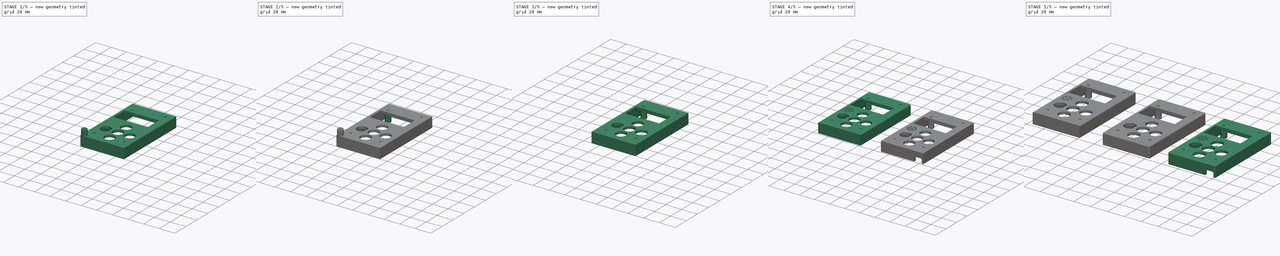
[diagram: build sequence overview — one tinted view per stage of 5, left to right]
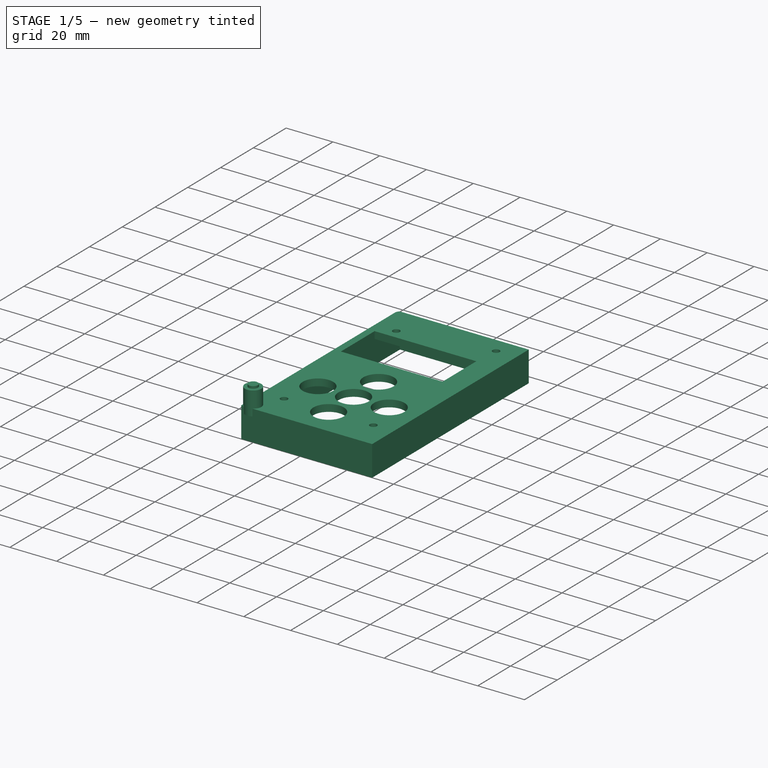
[diagram: stage 1 of 5 — iso view after this stage's code; geometry added in this stage tinted green]
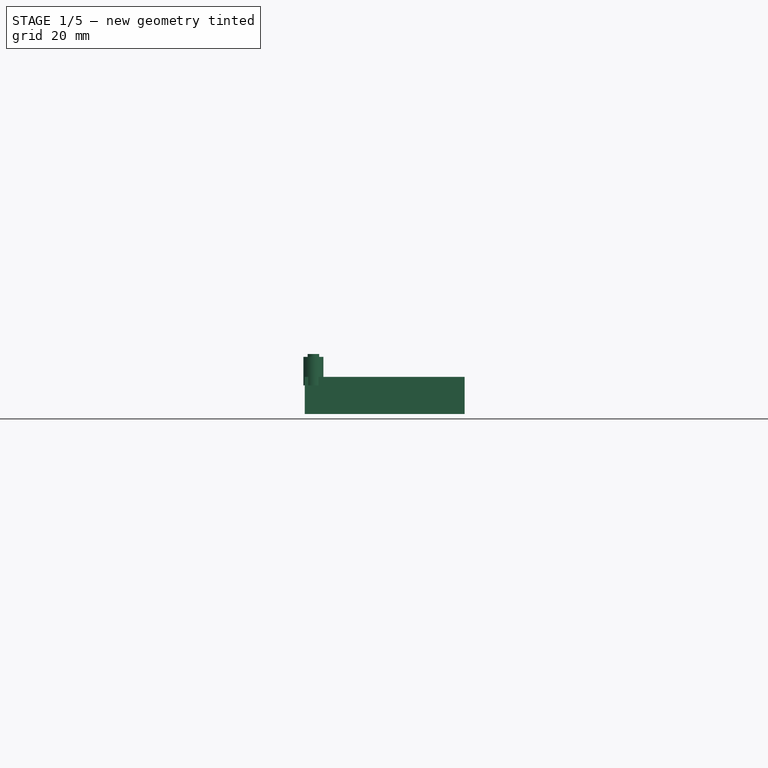
[diagram: stage 1 of 5 — front view after this stage's code; geometry added in this stage tinted green]
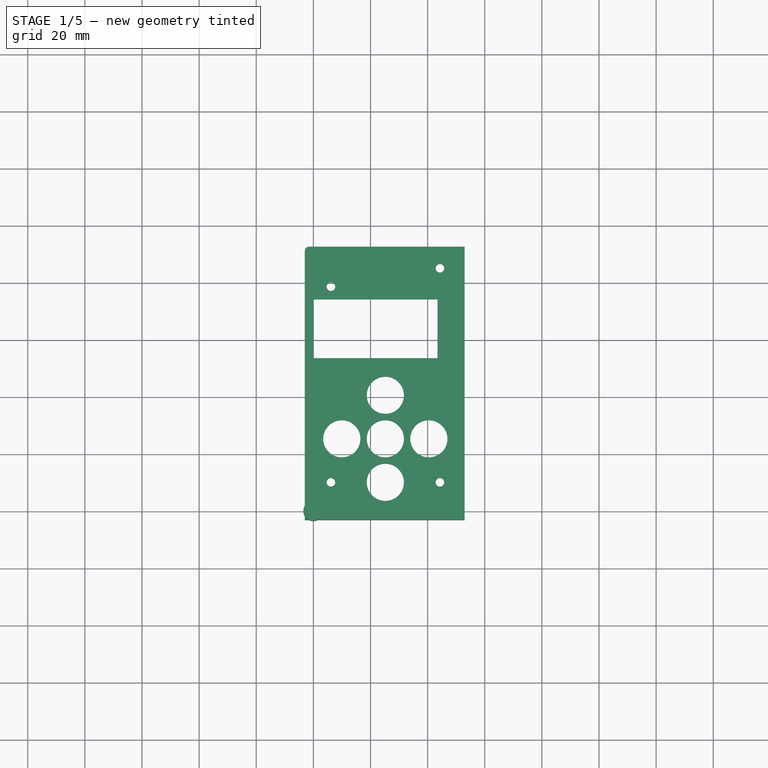
[diagram: stage 1 of 5 — top view after this stage's code; geometry added in this stage tinted green]
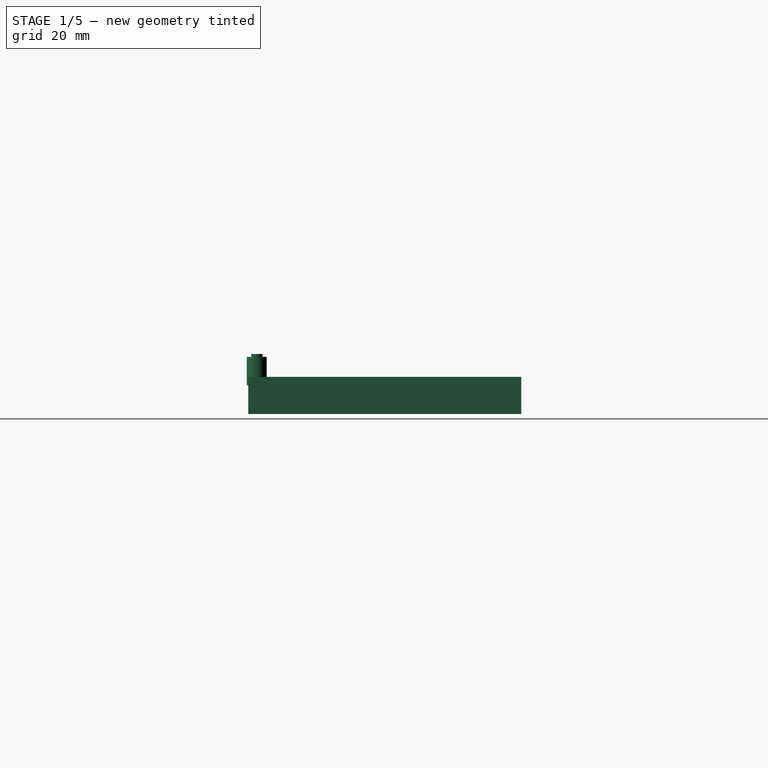
[diagram: stage 1 of 5 — right view after this stage's code; geometry added in this stage tinted green]
FCSTD DOCUMENT  (FreeCAD 0.18R)
Label: Tapacpu2.10
License: All rights reserved
LicenseURL: http://en.wikipedia.org/wiki/All_rights_reserved
objects: Part::Fillet×9, Part::Cylinder×8, Sketcher::SketchObject×5, Part::Cut×4, PartDesign::Pocket×3, PartDesign::Plane×3, PartDesign::Body×3, PartDesign::Pad×2, PartDesign::FeatureBase×2, Part::MultiFuse×1, App::DocumentObjectGroup×1
note: 45 computed .brp shape members not serialized (recipe doc carries the construction recipe); baked Part::Feature solids carry a one-line shape summary decoded from their .brp

FEATURE [Sketcher::SketchObject] Sketch  label="Dibujo botonera"
  MapMode = 2
  Support = -> [Sketch]
  sketch-geometry (13):
    g0: LineSegment StartX=0 StartY=89.58 StartZ=0 EndX=49.96 EndY=89.58 EndZ=0
    g1: LineSegment StartX=49.96 StartY=89.58 StartZ=0 EndX=49.96 EndY=0 EndZ=0
    g2: LineSegment StartX=49.96 StartY=0 StartZ=0 EndX=0 EndY=0 EndZ=0
    g3: LineSegment StartX=0 StartY=0 StartZ=0 EndX=0 EndY=89.58 EndZ=0
    g4: Circle CenterX=6.15 CenterY=10.08 CenterZ=0 NormalX=0 NormalY=0 NormalZ=1 AngleXU=0 Radius=1.5
    g5: Circle CenterX=44.31 CenterY=10.08 CenterZ=0 NormalX=0 NormalY=0 NormalZ=1 AngleXU=0 Radius=1.5
    g6: Circle CenterX=6.15 CenterY=78.58 CenterZ=0 NormalX=0 NormalY=0 NormalZ=1 AngleXU=0 Radius=1.5
    g7: Circle CenterX=44.31 CenterY=85.03 CenterZ=0 NormalX=0 NormalY=0 NormalZ=1 AngleXU=0 Radius=1.5
    g8: Circle CenterX=25.2 CenterY=10.08 CenterZ=0 NormalX=0 NormalY=0 NormalZ=1 AngleXU=0 Radius=6.5
    g9: Circle CenterX=40.44 CenterY=25.32 CenterZ=0 NormalX=0 NormalY=0 NormalZ=1 AngleXU=0 Radius=6.5
    g10: Circle CenterX=25.2 CenterY=40.56 CenterZ=0 NormalX=0 NormalY=0 NormalZ=1 AngleXU=0 Radius=6.5
    g11: Circle CenterX=9.96 CenterY=25.32 CenterZ=0 NormalX=0 NormalY=0 NormalZ=1 AngleXU=0 Radius=6.5
    g12: Circle CenterX=25.2 CenterY=25.32 CenterZ=0 NormalX=0 NormalY=0 NormalZ=1 AngleXU=0 Radius=6.5
  constraints (38):
    c: Coincident(g0,g1)
    c: Coincident(g1,g2)
    c: Coincident(g2,g3)
    c: Coincident(g3,g0)
    c: Horizontal(g0)
    c: Horizontal(g2)
    c: Vertical(g1)
    c: Vertical(g3)
    c: Coincident(g2,g-1)
    c: DistanceY(g3,g3) = 89.58
    c: DistanceX(g2,g2) = 49.96
    c: DistanceX(g2,g4) = 6.15
    c: DistanceY(g2,g4) = 10.08
    c: DistanceX(g2,g5) = 44.31
    c: DistanceY(g2,g6) = 78.58
    c: DistanceY(g2,g7) = 85.03
    c: Radius(g4) = 1.5
    c: Equal(g4,g5)
    c: Equal(g4,g7)
    c: Equal(g4,g6)
    c: DistanceX(g2,g6) = 6.15
    c: DistanceX(g2,g8) = 25.2
    c: DistanceY(g2,g8) = 10.08
    c: Horizontal(g4,g5)
    c: Vertical(g5,g7)
    c: DistanceY(g8,g12) = 15.24
    c: Vertical(g12,g8)
    c: Vertical(g12,g10)
    c: DistanceY(g12,g10) = 15.24
    c: Horizontal(g12,g11)
    c: Horizontal(g12,g9)
    c: DistanceX(g12,g9) = 15.24
    c: DistanceX(g11,g12) = 15.24
    c: Radius(g8) = 6.5
    c: Equal(g8,g12)
    c: Equal(g8,g9)
    c: Equal(g8,g10)
    c: Equal(g8,g11)
FEATURE [PartDesign::Pad] Pad
  Length = 3
  Length2 = 100
  Profile = -> Sketch
  Type = 0
FEATURE [Sketcher::SketchObject] Sketch001  label="Corte hueco arduino"
  MapMode = 5
  Placement = pos=(0,0,3) rot=(0,0,1;0rad)
  sketch-geometry (4):
    g0: LineSegment StartX=-2.61911 StartY=74.14 StartZ=0 EndX=43.4809 EndY=74.14 EndZ=0
    g1: LineSegment StartX=43.4809 StartY=74.14 StartZ=0 EndX=43.4809 EndY=53.54 EndZ=0
    g2: LineSegment StartX=43.4809 StartY=53.54 StartZ=0 EndX=-2.61911 EndY=53.54 EndZ=0
    g3: LineSegment StartX=-2.61911 StartY=53.54 StartZ=0 EndX=-2.61911 EndY=74.14 EndZ=0
  constraints (11):
    c: Coincident(g0,g1)
    c: Coincident(g1,g2)
    c: Coincident(g2,g3)
    c: Coincident(g3,g0)
    c: Horizontal(g0)
    c: Horizontal(g2)
    c: Vertical(g1)
    c: Vertical(g3)
    c: DistanceY(g-1,g2) = 53.54
    c: DistanceX(g2,g2) = 46.1
    c: DistanceY(g1,g1) = 20.6
FEATURE [PartDesign::Pocket] Pocket
  BaseFeature = -> Pad
  Length = 0
  Length2 = 100
  Midplane = true
  Profile = -> Sketch001
  Type = 3
  UpToFace = -> Pad [Face14]
FEATURE [Part::Cylinder] Cylinder006  label="Cilindro006"
  Angle = 360
  AttacherType = Attacher::AttachEngine3D
  Height = 12
  Placement = pos=(0,0,-1) rot=(0,0,1;0rad)
  Radius = 2
FEATURE [Part::Cylinder] Cylinder007  label="Cilindro007"
  Angle = 360
  AttacherType = Attacher::AttachEngine3D
  Height = 10
  Radius = 3.5
FEATURE [PartDesign::Plane] DatumPlane
  Length = 24
  ResizeMode = 0
  Width = 24
FEATURE [Sketcher::SketchObject] Sketch004
  MapMode = 5
  Support = -> [DatumPlane]
  sketch-geometry (8):
    g0: LineSegment StartX=0 StartY=0 StartZ=0 EndX=49.96 EndY=0 EndZ=0
    g1: LineSegment StartX=0 StartY=0 StartZ=0 EndX=0 EndY=89.58 EndZ=0
    g2: LineSegment StartX=49.96 StartY=0 StartZ=0 EndX=49.96 EndY=89.58 EndZ=0
    g3: LineSegment StartX=0 StartY=89.58 StartZ=0 EndX=49.96 EndY=89.58 EndZ=0
    g4: LineSegment StartX=-3 StartY=92.58 StartZ=0 EndX=52.96 EndY=92.58 EndZ=0
    g5: LineSegment StartX=52.96 StartY=92.58 StartZ=0 EndX=52.96 EndY=-3 EndZ=0
    g6: LineSegment StartX=52.96 StartY=-3 StartZ=0 EndX=-3 EndY=-3 EndZ=0
    g7: LineSegment StartX=-3 StartY=-3 StartZ=0 EndX=-3 EndY=92.58 EndZ=0
  constraints (23):
    c: Coincident(g0,g-1)
    c: Horizontal(g0)
    c: Vertical(g1)
    c: DistanceY(g1,g1) = 89.58
    c: Vertical(g2)
    c: Equal(g1,g2)
    c: Coincident(g2,g0)
    c: DistanceX(g0,g0) = 49.96
    c: Coincident(g3,g1)
    c: Coincident(g3,g2)
    c: Coincident(g4,g5)
    c: Coincident(g5,g6)
    c: Coincident(g6,g7)
    c: Coincident(g7,g4)
    c: Horizontal(g4)
    c: Horizontal(g6)
    c: Vertical(g5)
    c: Vertical(g7)
    c: DistanceX(g6,g-1) = 3
    c: DistanceY(g5,g0) = 3
    c: DistanceX(g0,g5) = 3
    c: DistanceY(g2,g4) = 3
    c: Coincident(g0,g1)
FEATURE [PartDesign::Pad] Pad002
  BaseFeature = -> Pocket
  Length = 3
  Length2 = 10
  Profile = -> Sketch004
  Type = 4
FEATURE [PartDesign::Body] Body
  Group = -> [Sketch,Pad,Sketch001,Pocket,DatumPlane,Sketch004,Pad002]
  Origin = -> Origin
  Tip = -> Pad002
FEATURE [Part::Fillet] Fillet
  Base = -> Pad002
  Edges = 4 edges r=1.5: [Edge60,Edge61,Edge63,Edge65]
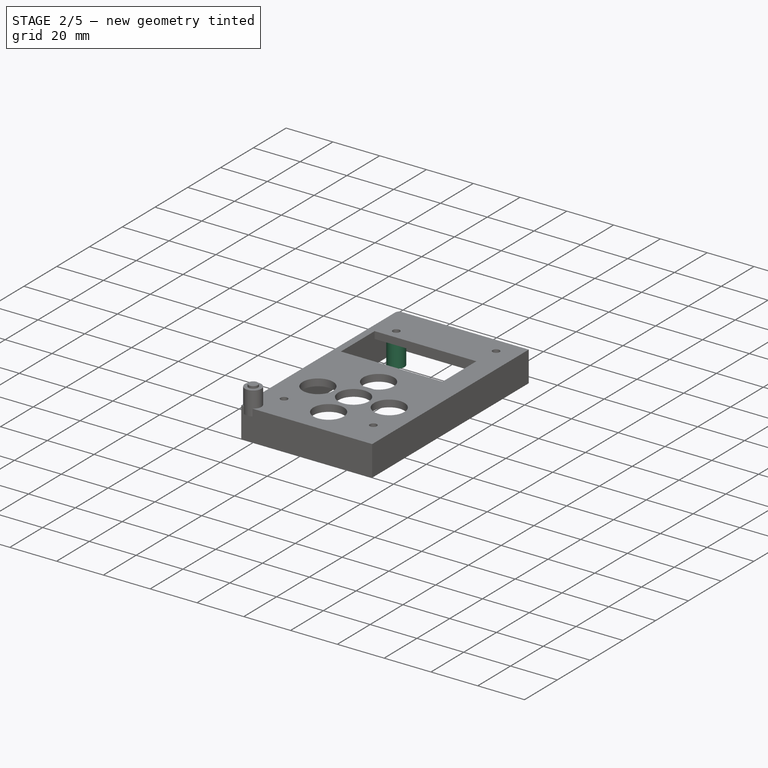
[diagram: stage 2 of 5 — iso view after this stage's code; geometry added in this stage tinted green]
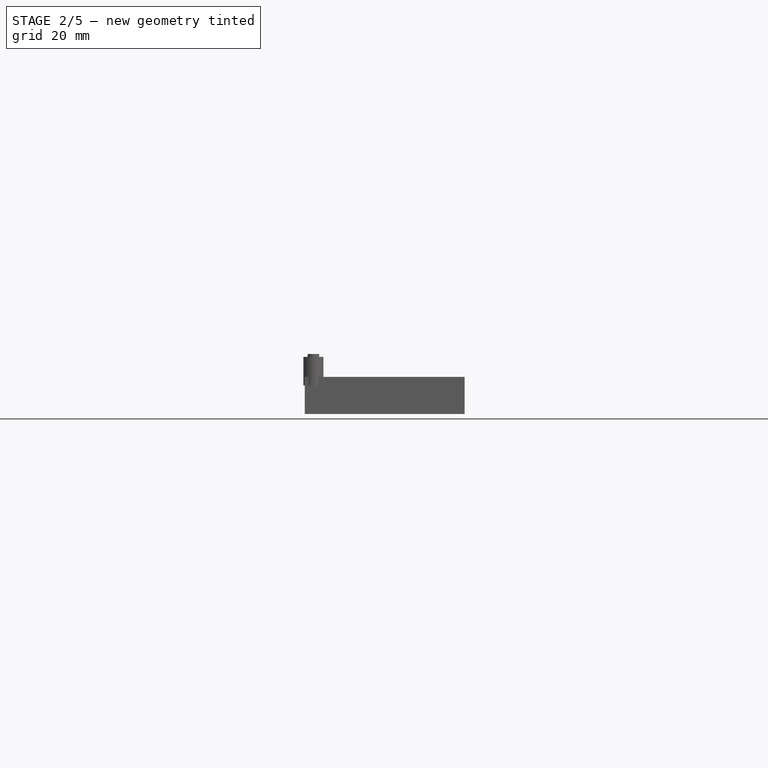
[diagram: stage 2 of 5 — front view after this stage's code; geometry added in this stage tinted green]
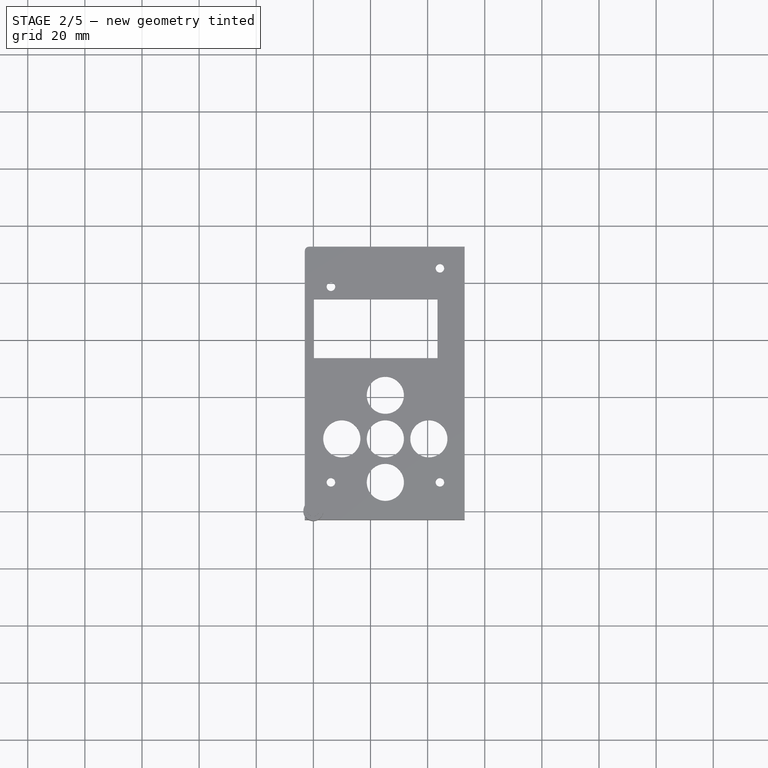
[diagram: stage 2 of 5 — top view after this stage's code; geometry added in this stage tinted green]
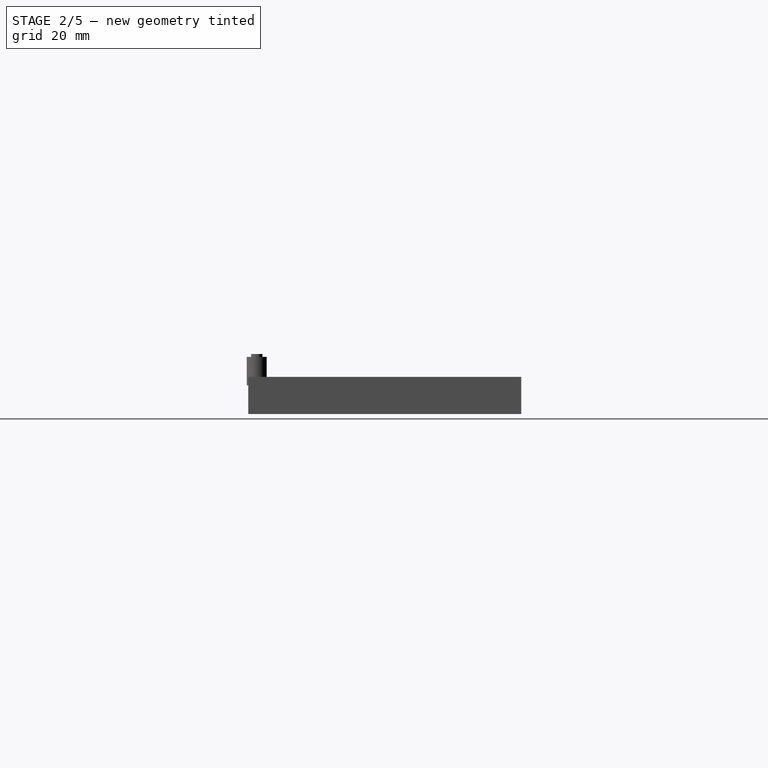
[diagram: stage 2 of 5 — right view after this stage's code; geometry added in this stage tinted green]
FEATURE [Part::Cylinder] Cylinder002  label="Cilindro002"
  Angle = 360
  AttacherType = Attacher::AttachEngine3D
  Height = 10
  Radius = 3.5
FEATURE [Part::Cylinder] Cylinder003  label="Cilindro003"
  Angle = 360
  AttacherType = Attacher::AttachEngine3D
  Height = 12
  Placement = pos=(0,0,-1) rot=(0,0,1;0rad)
  Radius = 2
FEATURE [Part::Cylinder] Cylinder004  label="Cilindro004"
  Angle = 360
  AttacherType = Attacher::AttachEngine3D
  Height = 12
  Placement = pos=(0,0,-1) rot=(0,0,1;0rad)
  Radius = 2
FEATURE [Part::Cylinder] Cylinder005  label="Cilindro005"
  Angle = 360
  AttacherType = Attacher::AttachEngine3D
  Height = 10
  Radius = 3.5
FEATURE [Part::Cut] Cut002  label="Apoyo_3"
  Base = -> Cylinder005
  Placement = pos=(6.15,78.58,-10) rot=(0,0,1;0rad)
  Tool = -> Cylinder004
FEATURE [Part::Cut] Cut003  label="Apoyo_4"
  Base = -> Cylinder007
  Placement = pos=(44.3,85.03,-10) rot=(0,0,1;0rad)
  Tool = -> Cylinder006
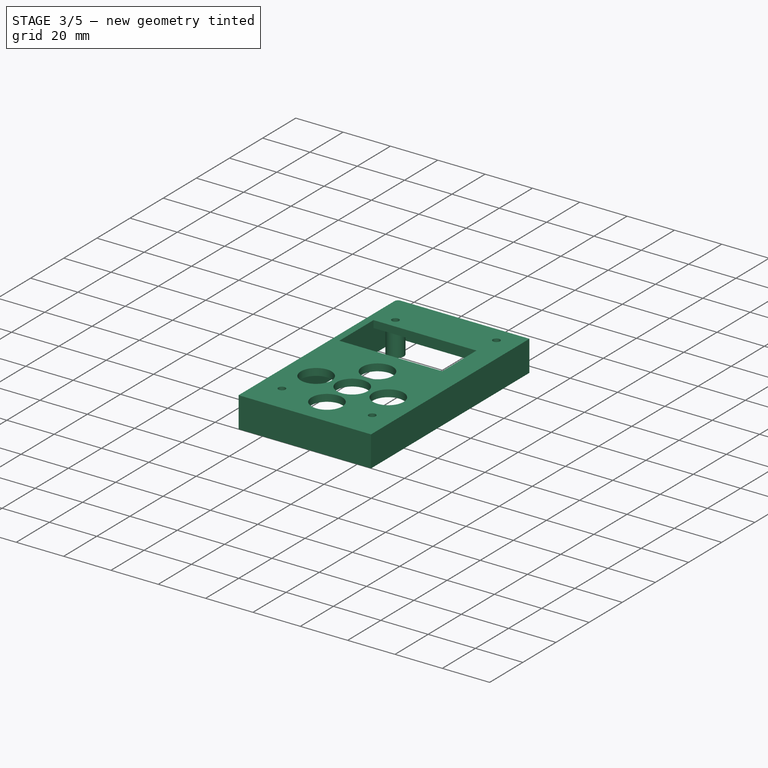
[diagram: stage 3 of 5 — iso view after this stage's code; geometry added in this stage tinted green]
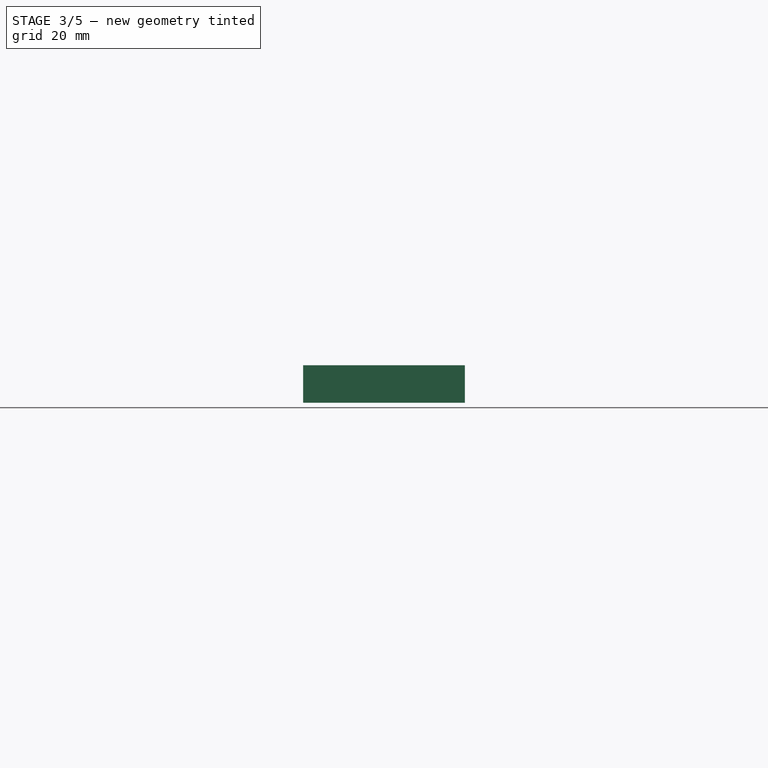
[diagram: stage 3 of 5 — front view after this stage's code; geometry added in this stage tinted green]
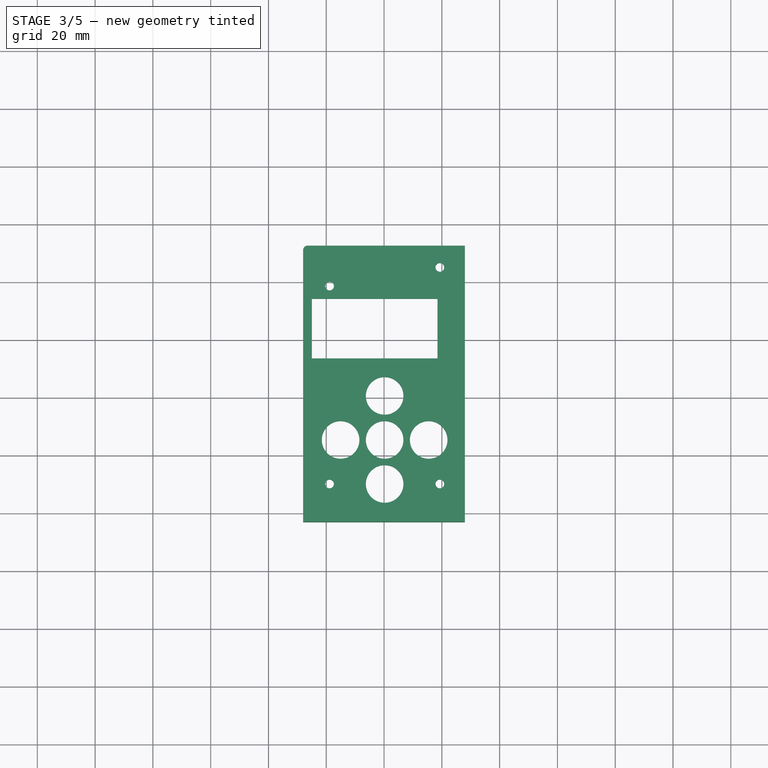
[diagram: stage 3 of 5 — top view after this stage's code; geometry added in this stage tinted green]
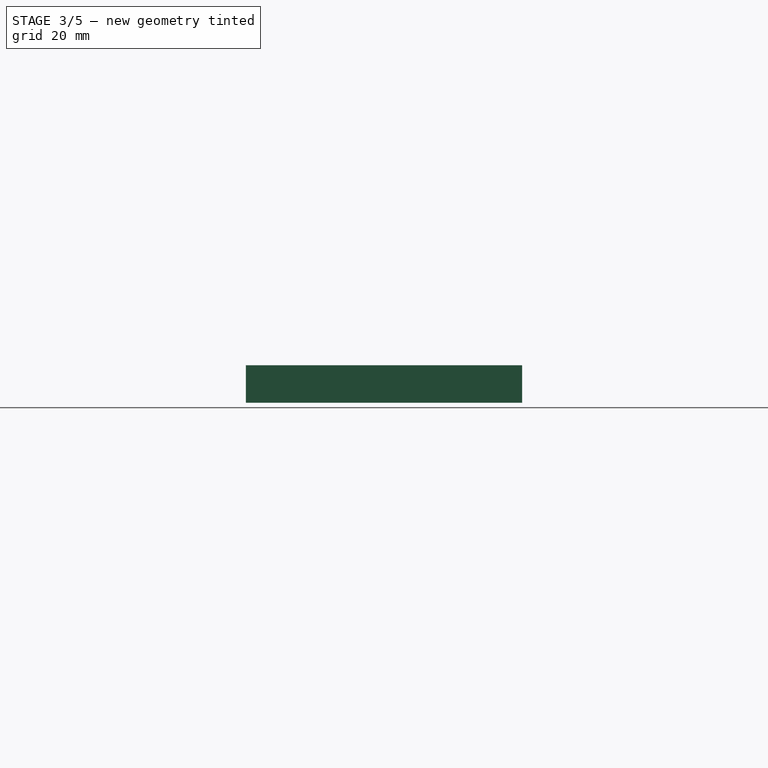
[diagram: stage 3 of 5 — right view after this stage's code; geometry added in this stage tinted green]
FEATURE [Part::Cylinder] Cylinder  label="Cilindro"
  Angle = 360
  AttacherType = Attacher::AttachEngine3D
  Height = 12
  Placement = pos=(0,0,-1) rot=(0,0,1;0rad)
  Radius = 2
FEATURE [Part::Cylinder] Cylinder001  label="Cilindro001"
  Angle = 360
  AttacherType = Attacher::AttachEngine3D
  Height = 10
  Radius = 3.5
FEATURE [Part::Cut] Cut  label="Apoyo_1"
  Base = -> Cylinder001
  Placement = pos=(6.15,10.08,-10) rot=(0,0,1;0rad)
  Tool = -> Cylinder
FEATURE [Part::Cut] Cut001  label="Apoyo_2"
  Base = -> Cylinder002
  Placement = pos=(44.31,10.08,-10) rot=(0,0,1;0rad)
  Tool = -> Cylinder003
FEATURE [Part::MultiFuse] Fusion  label="TapaFinal"
  Placement = pos=(75,0,0) rot=(0,0,1;0rad)
  Shapes = -> [Cut,Cut001,Cut002,Cut003,Fillet]
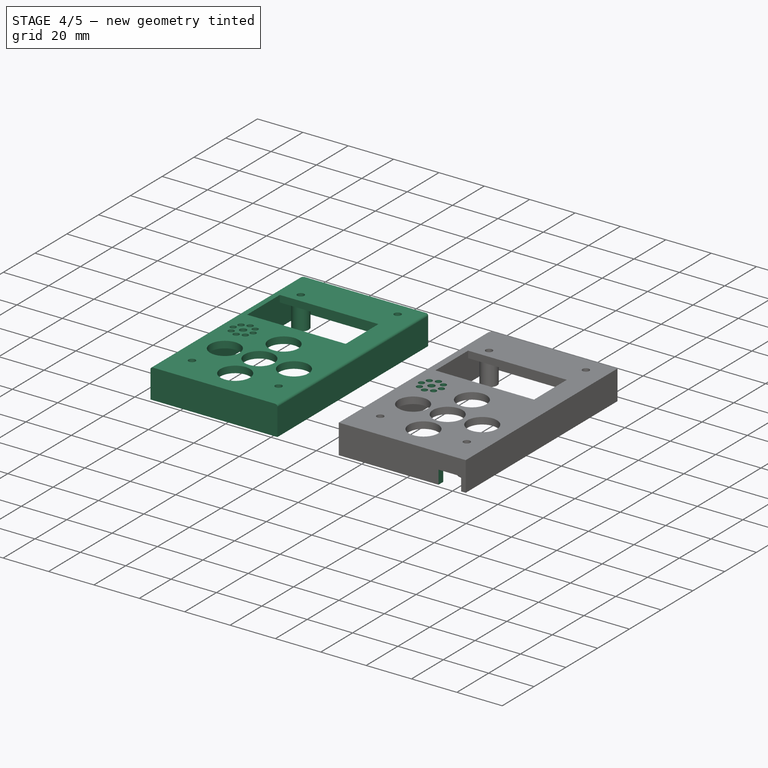
[diagram: stage 4 of 5 — iso view after this stage's code; geometry added in this stage tinted green]
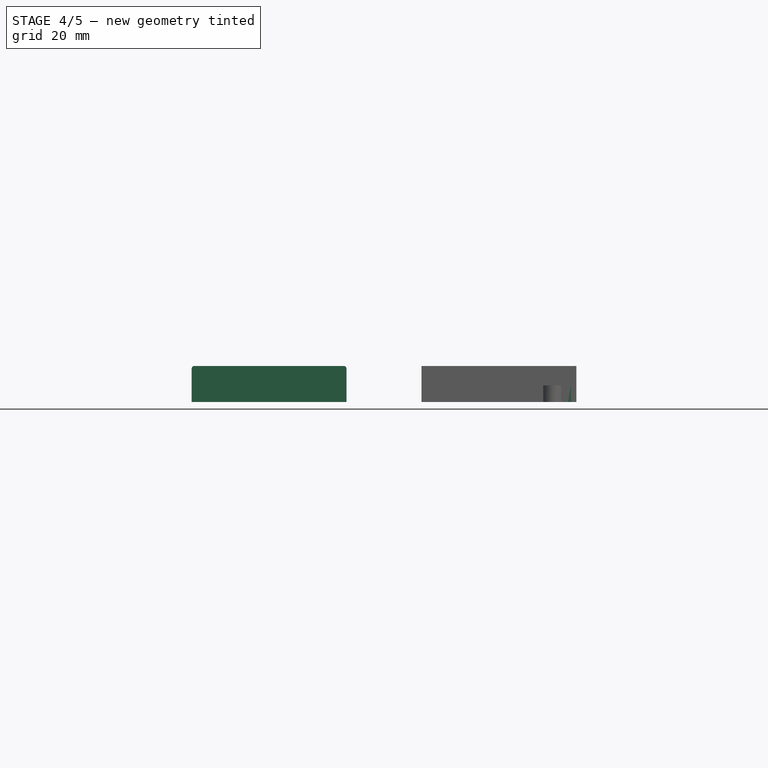
[diagram: stage 4 of 5 — front view after this stage's code; geometry added in this stage tinted green]
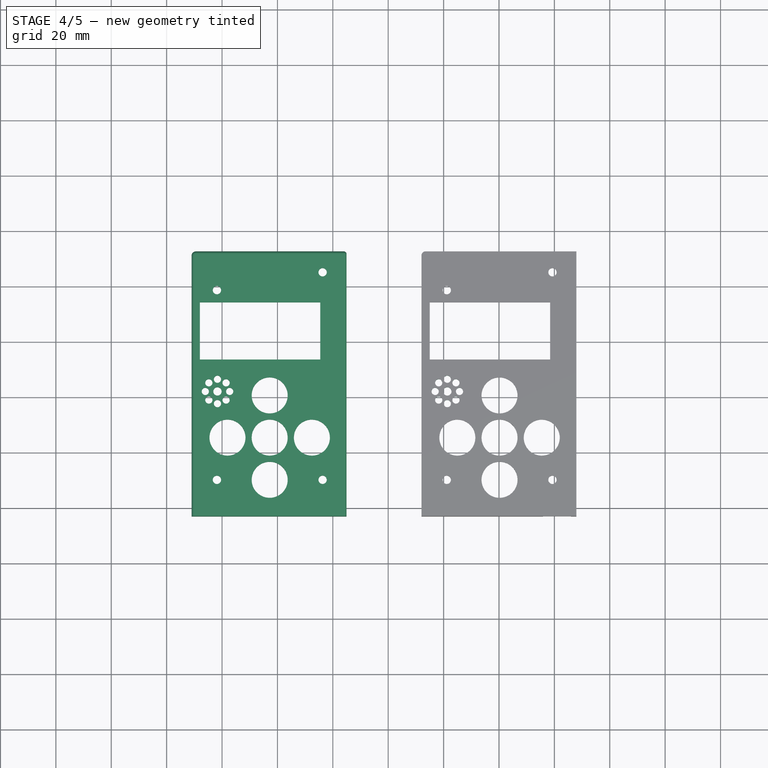
[diagram: stage 4 of 5 — top view after this stage's code; geometry added in this stage tinted green]
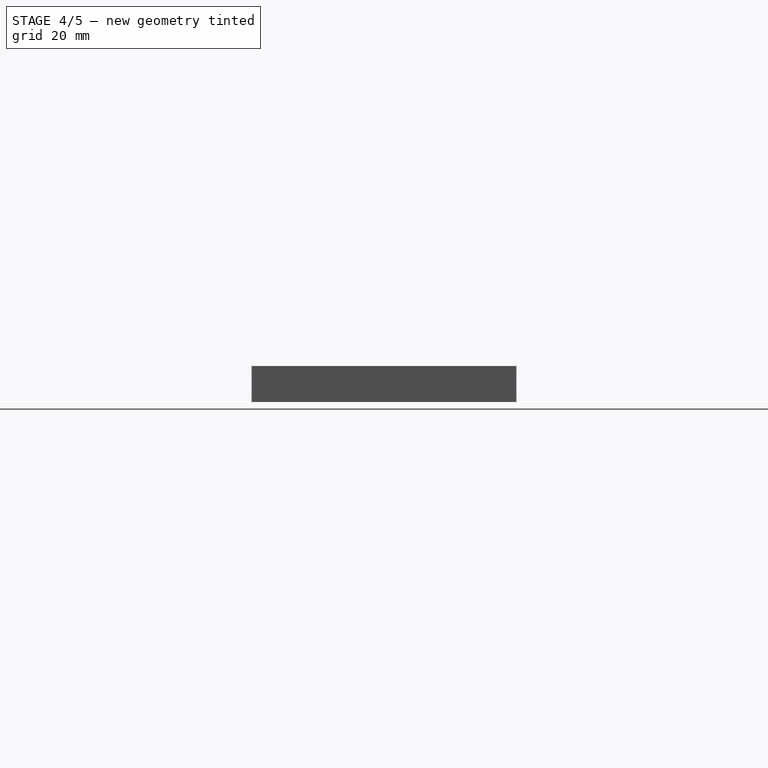
[diagram: stage 4 of 5 — right view after this stage's code; geometry added in this stage tinted green]
FEATURE [PartDesign::FeatureBase] Clone
  BaseFeature = -> Fusion
FEATURE [PartDesign::Plane] DatumPlane001
  Length = 24
  Placement = pos=(0,0,3) rot=(0,0,1;0rad)
  ResizeMode = 0
  Width = 24
FEATURE [Sketcher::SketchObject] Sketch005  label="Agujeros buzzer"
  MapMode = 5
  Placement = pos=(0,0,3) rot=(0,0,1;0rad)
  Support = -> [DatumPlane001]
  sketch-geometry (19):
    g0: GeomPoint X=6.35 Y=42 Z=0
    g1: Circle CenterX=6.35 CenterY=42 CenterZ=0 NormalX=0 NormalY=0 NormalZ=1 AngleXU=0 Radius=1.5
    g2: Circle [constr] CenterX=6.35 CenterY=42 CenterZ=0 NormalX=0 NormalY=0 NormalZ=1 AngleXU=0 Radius=4.4
    g3: LineSegment [constr] StartX=6.35 StartY=42 StartZ=0 EndX=6.35 EndY=37.6 EndZ=0
    g4: LineSegment [constr] StartX=6.35 StartY=42 StartZ=0 EndX=6.35 EndY=46.4 EndZ=0
    g5: LineSegment [constr] StartX=6.35 StartY=42 StartZ=0 EndX=1.95 EndY=42 EndZ=0
    g6: LineSegment [constr] StartX=6.35 StartY=42 StartZ=0 EndX=10.75 EndY=42 EndZ=0
    g7: LineSegment [constr] StartX=6.35 StartY=42 StartZ=0 EndX=9.46127 EndY=45.1113 EndZ=0
    g8: LineSegment [constr] StartX=6.35 StartY=42 StartZ=0 EndX=3.23873 EndY=45.1113 EndZ=0
    g9: LineSegment [constr] StartX=6.35 StartY=42 StartZ=0 EndX=3.23873 EndY=38.8887 EndZ=0
    g10: LineSegment [constr] StartX=6.35 StartY=42 StartZ=0 EndX=9.46127 EndY=38.8887 EndZ=0
    g11: Circle CenterX=1.95 CenterY=42 CenterZ=0 NormalX=0 NormalY=0 NormalZ=1 AngleXU=0 Radius=1.3
    g12: Circle CenterX=3.23873 CenterY=45.1113 CenterZ=0 NormalX=0 NormalY=0 NormalZ=1 AngleXU=0 Radius=1.3
    g13: Circle CenterX=6.35 CenterY=46.4 CenterZ=0 NormalX=0 NormalY=0 NormalZ=1 AngleXU=0 Radius=1.3
    g14: Circle CenterX=9.46127 CenterY=45.1113 CenterZ=0 NormalX=0 NormalY=0 NormalZ=1 AngleXU=0 Radius=1.3
    g15: Circle CenterX=10.75 CenterY=42 CenterZ=0 NormalX=0 NormalY=0 NormalZ=1 AngleXU=0 Radius=1.3
    g16: Circle CenterX=9.46127 CenterY=38.8887 CenterZ=0 NormalX=0 NormalY=0 NormalZ=1 AngleXU=0 Radius=1.3
    g17: Circle CenterX=6.35 CenterY=37.6 CenterZ=0 NormalX=0 NormalY=0 NormalZ=1 AngleXU=0 Radius=1.3
    g18: Circle CenterX=3.23873 CenterY=38.8887 CenterZ=0 NormalX=0 NormalY=0 NormalZ=1 AngleXU=0 Radius=1.3
  constraints (43):
    c: DistanceY(g-1,g0) = 42
    c: DistanceX(g-1,g0) = 6.35
    c: Diameter(g1) = 3
    c: Coincident(g0,g1)
    c: Coincident(g2,g0)
    c: Radius(g2) = 4.4
    c: Coincident(g3,g0)
    c: PointOnObject(g3,g2)
    c: Vertical(g3)
    c: Coincident(g4,g0)
    c: PointOnObject(g4,g2)
    c: Vertical(g4)
    c: Coincident(g5,g0)
    c: PointOnObject(g5,g2)
    c: Horizontal(g5)
    c: Coincident(g6,g0)
    c: PointOnObject(g6,g2)
    c: Horizontal(g6)
    c: Coincident(g7,g0)
    c: PointOnObject(g7,g2)
    c: Coincident(g8,g0)
    c: PointOnObject(g8,g2)
    c: PointOnObject(g9,g2)
    c: Coincident(g10,g0)
    c: PointOnObject(g10,g2)
    c: Coincident(g0,g9)
    c: Angle(g6,g7) = 0.785398
    c: Angle(g8,g5) = 0.785398
    c: Angle(g5,g9) = 0.785398
    c: Angle(g10,g6) = 0.785398
    c: Coincident(g11,g5)
    c: Coincident(g12,g8)
    c: Coincident(g13,g4)
    c: Coincident(g14,g7)
    c: Coincident(g15,g6)
    c: Coincident(g16,g10)
    c: Coincident(g17,g3)
    c: Coincident(g18,g9)
    c: Radius(g18) = 1.3
    c: Equal(g18, g11-g14) x4
    c: Equal(g18,g16)
    c: Equal(g18,g15)
    c: Equal(g18,g17)
FEATURE [PartDesign::Pocket] Pocket001  label="Buzzer"
  BaseFeature = -> Clone
  Length = 5
  Length2 = 100
  Profile = -> Sketch005
  Type = 1
FEATURE [PartDesign::Body] Body001  label="TapaBuzzer"
  BaseFeature = -> Fusion
  Group = -> [Clone,DatumPlane001,Sketch005,Pocket001]
  Origin = -> Origin001
  Placement = pos=(75,0,0) rot=(0,0,1;0rad)
  Tip = -> Pocket001
FEATURE [PartDesign::FeatureBase] Clone001
  BaseFeature = -> Body001
  Placement = pos=(75,0,0) rot=(0,0,1;0rad)
FEATURE [PartDesign::Plane] DatumPlane002
  Length = 148.466
  Placement = pos=(73,-3,-3) rot=(1,0,0;1.5708rad)
  ResizeMode = 0
  Width = 30.5056
FEATURE [Sketcher::SketchObject] Sketch006
  ExternalGeometry = -> [Clone001]
  MapMode = 5
  Placement = pos=(73,-3,-3) rot=(1,0,0;1.5708rad)
  Support = -> [DatumPlane002]
  sketch-geometry (4):
    g0: LineSegment StartX=42.96 StartY=-1 StartZ=0 EndX=52.96 EndY=-1 EndZ=0
    g1: LineSegment StartX=52.96 StartY=-1 StartZ=0 EndX=52.96 EndY=-7 EndZ=0
    g2: LineSegment StartX=52.96 StartY=-7 StartZ=0 EndX=42.96 EndY=-7 EndZ=0
    g3: LineSegment StartX=42.96 StartY=-7 StartZ=0 EndX=42.96 EndY=-1 EndZ=0
  constraints (12):
    c: Coincident(g0,g1)
    c: Coincident(g1,g2)
    c: Coincident(g2,g3)
    c: Coincident(g3,g0)
    c: Horizontal(g0)
    c: Horizontal(g2)
    c: Vertical(g1)
    c: Vertical(g3)
    c: DistanceX(g1,g-4) = 2
    c: DistanceY(g1,g1) = 6
    c: Horizontal(g1,g-4)
    c: DistanceX(g0,g0) = 10
FEATURE [PartDesign::Pocket] Pocket002
  BaseFeature = -> Clone001
  Length = 5
  Length2 = 100
  Placement = pos=(75,0,0) rot=(0,0,1;0rad)
  Profile = -> Sketch006
  Type = 0
FEATURE [Part::Fillet] Fillet004
  Base = -> Pocket001
  Edges = 1 edges r=1: [Edge18]
FEATURE [Part::Fillet] Fillet008  label="TapaBuzzer Final"
  Base = -> Fillet004
  Edges = 1 edges r=1: [Edge4]
  Placement = pos=(-8,0,0) rot=(0,0,1;0rad)
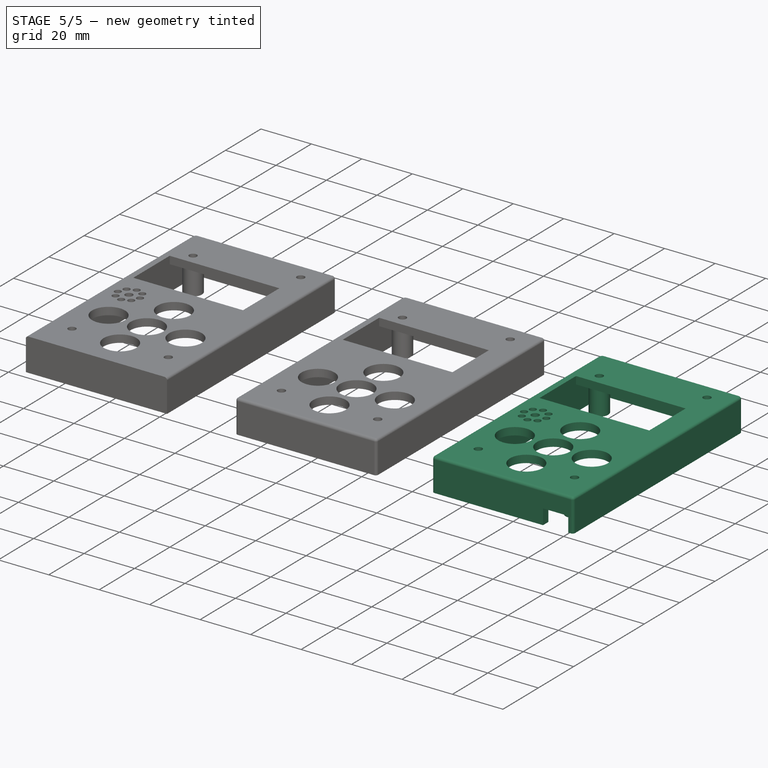
[diagram: stage 5 of 5 — iso view after this stage's code; geometry added in this stage tinted green]
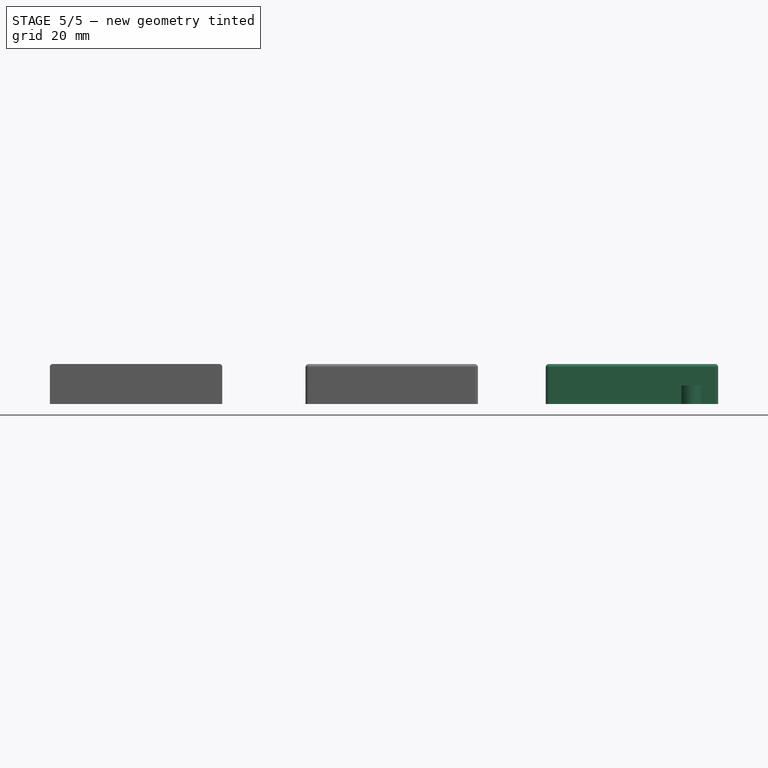
[diagram: stage 5 of 5 — front view after this stage's code; geometry added in this stage tinted green]
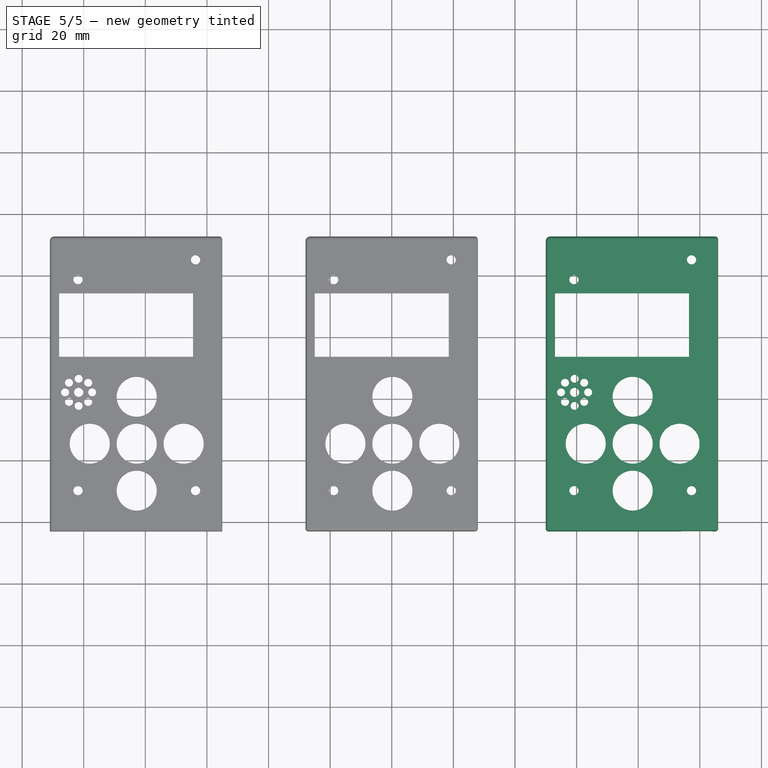
[diagram: stage 5 of 5 — top view after this stage's code; geometry added in this stage tinted green]
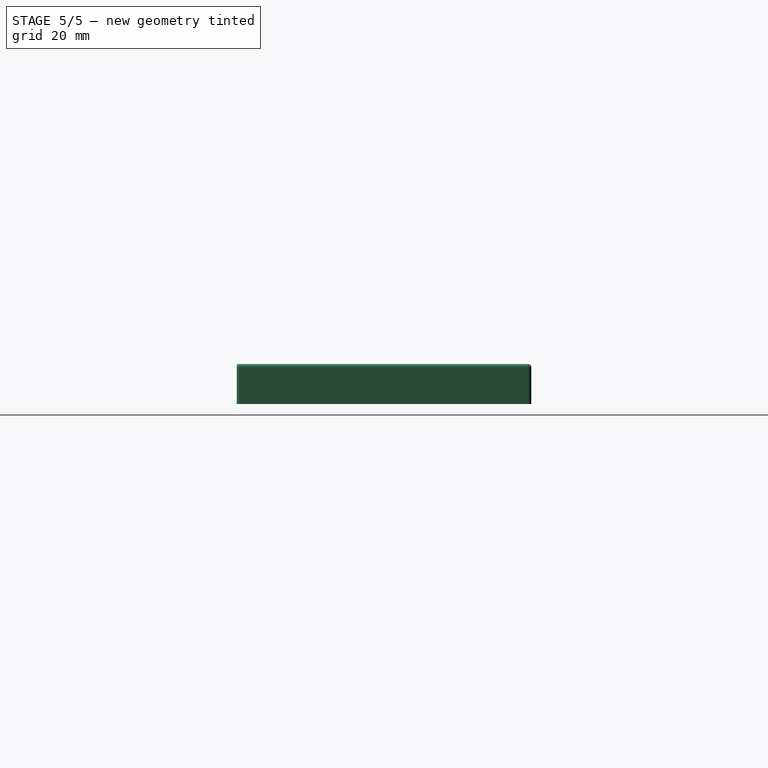
[diagram: stage 5 of 5 — right view after this stage's code; geometry added in this stage tinted green]
FEATURE [PartDesign::Body] Body002  label="TapaBuzzerSw"
  Group = -> [Clone001,DatumPlane002,Sketch006,Pocket002]
  Origin = -> Origin002
  Placement = pos=(150,0,0) rot=(0,0,1;0rad)
  Tip = -> Pocket002
FEATURE [App::DocumentObjectGroup] Grupo001  label="TapaCompleta"
  Group = -> [Fusion,Body,Body001,Body002]
FEATURE [Part::Fillet] Fillet001
  Base = -> Fusion
  Edges = 1 edges r=1: [Edge17]
FEATURE [Part::Fillet] Fillet002
  Base = -> Fillet001
  Edges = 2 edges r=1: [Edge18,Edge20]
FEATURE [Part::Fillet] Fillet003  label="TapaSimpleFinal"
  Base = -> Fillet002
  Edges = 4 edges r=1: [Edge15,Edge21,Edge23,Edge28]
FEATURE [Part::Fillet] Fillet005
  Base = -> Pocket002
  Edges = 1 edges r=1: [Edge22]
  Placement = pos=(66,0,0) rot=(0,0,1;0rad)
FEATURE [Part::Fillet] Fillet006
  Base = -> Fillet005
  Edges = 1 edges r=1: [Edge8]
FEATURE [Part::Fillet] Fillet007  label="TapaBuzzerInterruptor"
  Base = -> Fillet006
  Edges = 1 edges r=1: [Edge46]
  Placement = pos=(12,0,0) rot=(0,0,1;0rad)
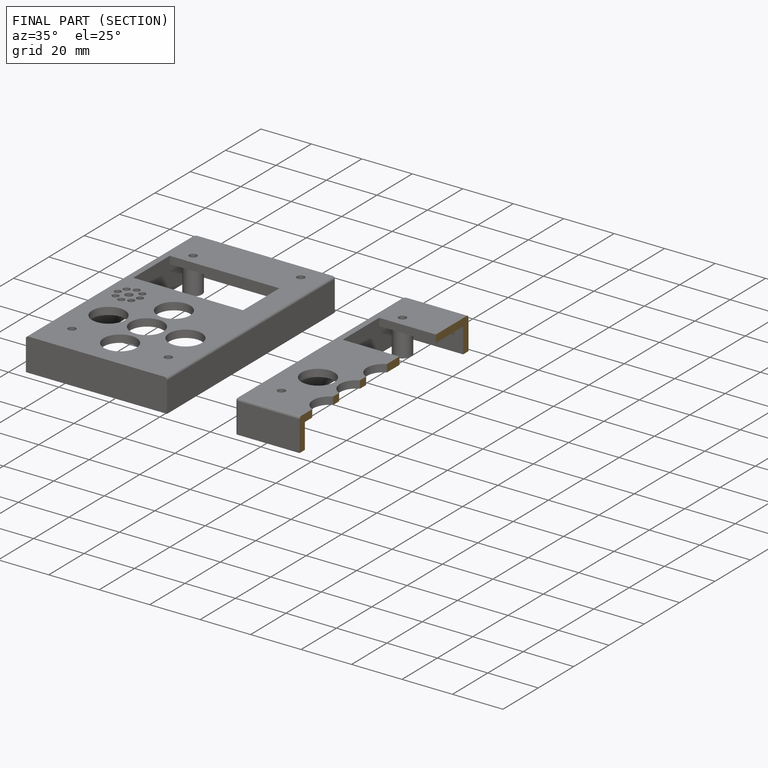
[diagram: finished part — half-section view (interior)]
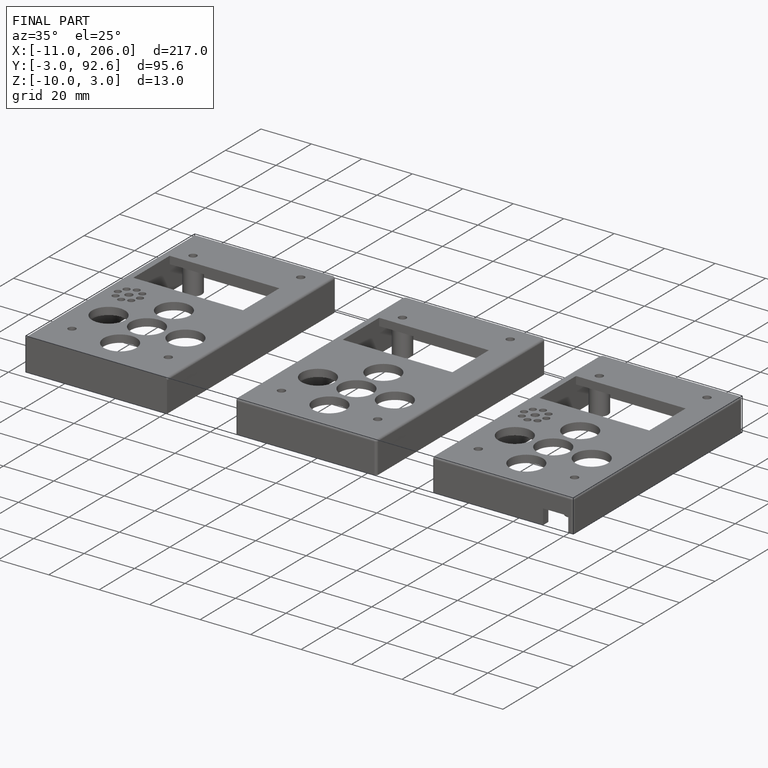
[diagram: finished part — iso view with bounding-box wireframe]
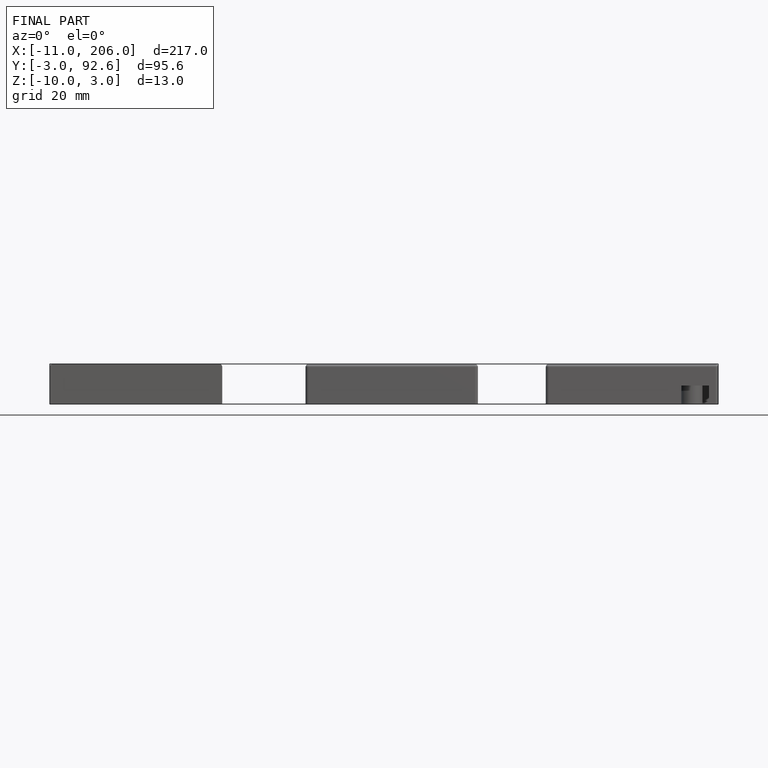
[diagram: finished part — front view with bounding-box wireframe]
